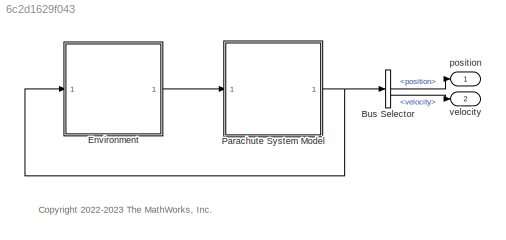
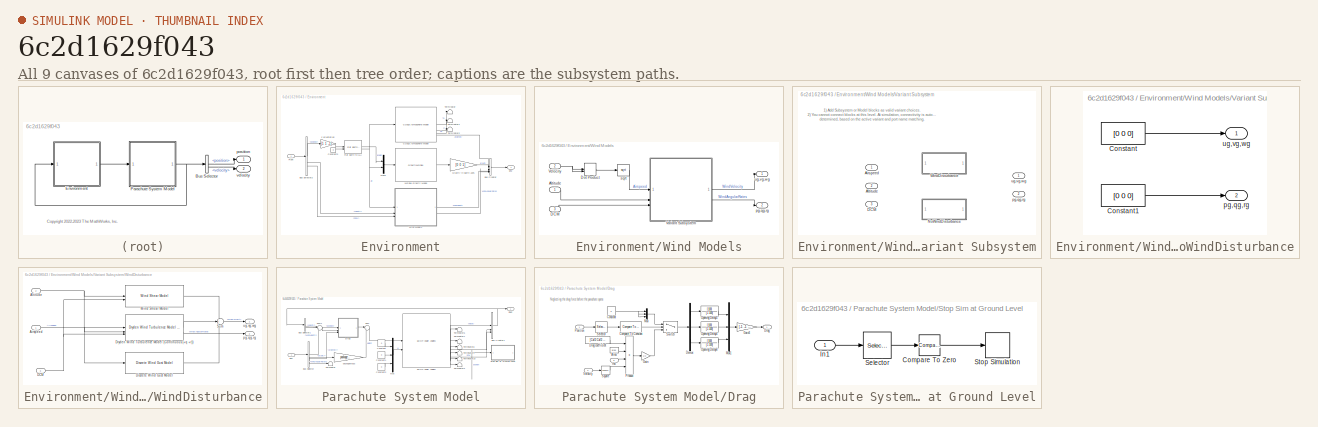
[diagram: thumbnail index - all 9 canvases of the model, root first then tree order]
MODEL slx_6c2d1629f043
KIND model
CONFIG AbsTol = auto
CONFIG EnableMultiTasking = off
CONFIG FixedStep = auto
CONFIG MaxStep = 0.1
CONFIG MinStep = auto
CONFIG PreLoadFcn = % initialize values allowing model to run without Live Script\nwindDisturbance = true;\nwindSeed = randi(100,1);\nheadingInitial = 45;\nlatInitial = 43.5319;\nlongInitial = 1.2438;\nXeInitial = 0;\nYeInitial = 0;\nZeInitial = 2000;\nUInitialMPS = 65.277777777777790;\nVInitialMPS = 0;\nWInitialMPS = 0;\nhOpening = 500;\npackageMass = 130;\narea = 115;\nmass = 165;\nvelocity = 6;\ng = 9.81;\nrho = 1.229;\nCd = 2*mass*...<+26ch>
CONFIG RelTol = 1e-3
CONFIG SampleTimeConstraint = Unconstrained
CONFIG SolverName = VariableStepAuto
CONFIG StartTime = 0.0
CONFIG StopTime = 500
BLOCK [BusSelector] Bus Selector
  OutputSignals = position,velocity
BLOCK [SubSystem] Environment
BLOCK [BusCreator] Environment/Bus Creator
  DisplayOption = bar
  InheritFromInputs = on
  Inputs = 4
BLOCK [BusSelector] Environment/Bus Selector2
  OutputSignals = position,velocity,DCM
BLOCK [Reference] Environment/COESA Atmosphere Model  REF=aerolibatmos2/COESA Atmosphere Model
  SourceBlock = aerolibatmos2/COESA Atmosphere Model
  SourceType = Atmosphere Model
BLOCK [Constant] Environment/Constant3
  Value = 0
BLOCK [Outport] Environment/Env
BLOCK [Reference] Environment/Flat Earth to LLA  REF=aerolibtransform2/Flat Earth to LLA
  SourceBlock = aerolibtransform2/Flat Earth to LLA
  SourceType = Flat Earth to LLA
BLOCK [Gain] Environment/Gravity in Earth Axes
  Gain = [0 0 1]
  OutDataTypeStr = Inherit: Same as input
  ParamDataTypeStr = Inherit: Same as input
  SaturateOnIntegerOverflow = on
BLOCK [Mux] Environment/Mux2
  DisplayOption = bar
  Inputs = 2
BLOCK [Inport] Environment/Plant
BLOCK [Terminator] Environment/Terminator
BLOCK [Terminator] Environment/Terminator1
BLOCK [Terminator] Environment/Terminator2
BLOCK [GravityWGS84] Environment/WGS84 Gravity Model  
  action = None
BLOCK [SubSystem] Environment/Wind Models
BLOCK [Inport] Environment/Wind Models/Altitude
BLOCK [Inport] Environment/Wind Models/DCM
  Port = 3
BLOCK [DotProduct] Environment/Wind Models/Dot Product
  InputSameDT = off
  OutDataTypeStr = Inherit: Inherit via internal rule
BLOCK [SubSystem] Environment/Wind Models/Variant Subsystem
  Variant = on
BLOCK [Inport] Environment/Wind Models/Variant Subsystem/Airspeed
BLOCK [Inport] Environment/Wind Models/Variant Subsystem/Altitude
  Port = 2
BLOCK [Inport] Environment/Wind Models/Variant Subsystem/DCM
  Port = 3
BLOCK [SubSystem] Environment/Wind Models/Variant Subsystem/NoWindDisturbance
  VariantControl = windDisturbance==false
BLOCK [Constant] Environment/Wind Models/Variant Subsystem/NoWindDisturbance/Constant
  Value = [0 0 0]
BLOCK [Constant] Environment/Wind Models/Variant Subsystem/NoWindDisturbance/Constant1
  Value = [0 0 0]
BLOCK [Outport] Environment/Wind Models/Variant Subsystem/NoWindDisturbance/pg,qg,rg
  Port = 2
  Unit = rad/second
  VectorParamsAs1DForOutWhenUnconnected = off
BLOCK [Outport] Environment/Wind Models/Variant Subsystem/NoWindDisturbance/ug,vg,wg
BLOCK [SubSystem] Environment/Wind Models/Variant Subsystem/WindDisturbance
  VariantControl = windDisturbance==true
BLOCK [Inport] Environment/Wind Models/Variant Subsystem/WindDisturbance/Airspeed
BLOCK [Inport] Environment/Wind Models/Variant Subsystem/WindDisturbance/Altitude
  Port = 2
BLOCK [Inport] Environment/Wind Models/Variant Subsystem/WindDisturbance/DCM
  Port = 3
BLOCK [Reference] Environment/Wind Models/Variant Subsystem/WindDisturbance/Discrete Wind Gust Model  REF=aerolibwind2/Discrete Wind Gust Model
  SourceBlock = aerolibwind2/Discrete Wind Gust Model
  SourceType = Discrete Wind Gust Model
BLOCK [Reference] Environment/Wind Models/Variant Subsystem/WindDisturbance/Dryden Wind Turbulence Model (Continuous (+q +r))  REF=aerolibwind2/Dryden Wind Turbulence Model 
(Continuous (+q -r))
  SourceBlock = aerolibwind2/Dryden Wind Turbulence Model \n(Continuous (+q -r))
  SourceType = Wind Turbulence Model
BLOCK [Sum] Environment/Wind Models/Variant Subsystem/WindDisturbance/Sum
  InputSameDT = on
  Inputs = +++
  OutDataTypeStr = Inherit: Same as first input
  SaturateOnIntegerOverflow = on
BLOCK [Reference] Environment/Wind Models/Variant Subsystem/WindDisturbance/Wind Shear Model  REF=aerolibwind2/Wind Shear Model
  SourceBlock = aerolibwind2/Wind Shear Model
  SourceType = Wind Shear Model
BLOCK [Outport] Environment/Wind Models/Variant Subsystem/WindDisturbance/pg,qg,rg
  Port = 2
  Unit = rad/second
  VectorParamsAs1DForOutWhenUnconnected = off
BLOCK [Outport] Environment/Wind Models/Variant Subsystem/WindDisturbance/ug,vg,wg
BLOCK [Outport] Environment/Wind Models/Variant Subsystem/pg,qg,rg
  Port = 2
BLOCK [Outport] Environment/Wind Models/Variant Subsystem/ug,vg,wg
BLOCK [Inport] Environment/Wind Models/Velocity
  Port = 2
BLOCK [Outport] Environment/Wind Models/pg,qg,rg
  Port = 2
  Unit = rad/second
  VectorParamsAs1DForOutWhenUnconnected = off
BLOCK [Sqrt] Environment/Wind Models/sqrt
BLOCK [Outport] Environment/Wind Models/ug,vg,wg
  Unit = m/s
  VectorParamsAs1DForOutWhenUnconnected = off
BLOCK [Gain] Environment/z orientation
  Gain = [1 1 -1]
  NameLocation = top
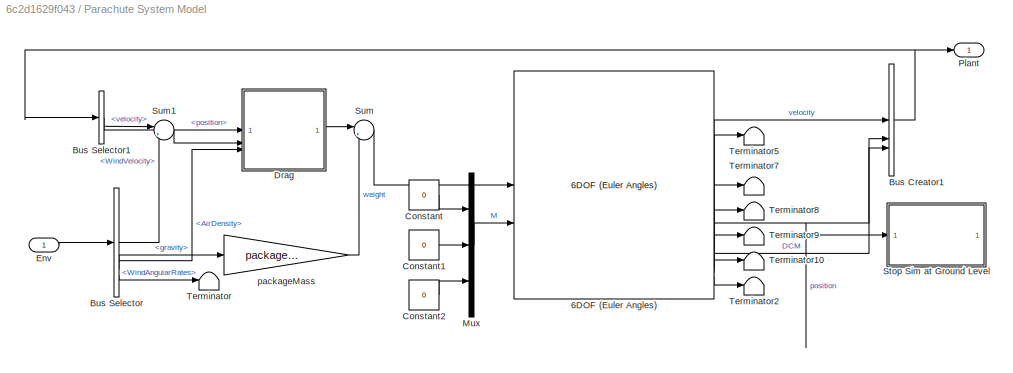
BLOCK [SubSystem] Parachute System Model
BLOCK [Reference] Parachute System Model/6DOF (Euler Angles)  REF=shared6dof/6DOF (Euler Angles)
  SourceBlock = shared6dof/6DOF (Euler Angles)
  SourceType = 6DOF EoM (Body Axis)
BLOCK [BusCreator] Parachute System Model/Bus Creator1
  DisplayOption = bar
  InheritFromInputs = on
  Inputs = 3
BLOCK [BusSelector] Parachute System Model/Bus Selector
  OutputSignals = WindVelocity,AirDensity,gravity,WindAngularRates
BLOCK [BusSelector] Parachute System Model/Bus Selector1
  OutputSignals = position,velocity
BLOCK [Constant] Parachute System Model/Constant
  Value = 0
BLOCK [Constant] Parachute System Model/Constant1
  Value = 0
BLOCK [Constant] Parachute System Model/Constant2
  Value = 0
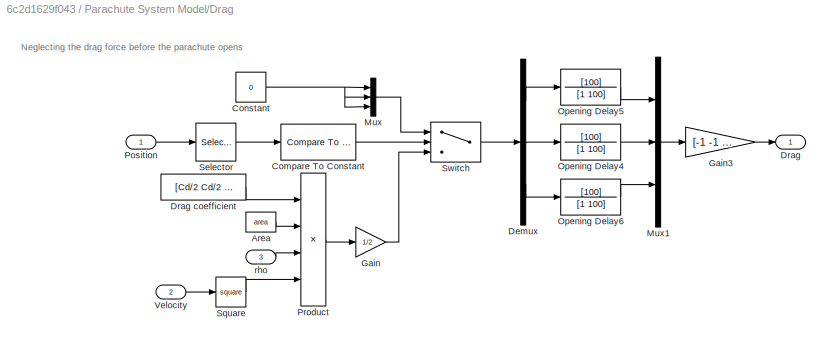
BLOCK [SubSystem] Parachute System Model/Drag
BLOCK [Constant] Parachute System Model/Drag/Area
  Value = area
BLOCK [Reference] Parachute System Model/Drag/Compare To Constant  REF=simulink/Logic and Bit
Operations/Compare
To Constant
  SourceBlock = simulink/Logic and Bit\nOperations/Compare\nTo Constant
  SourceType = Compare To Constant
BLOCK [Constant] Parachute System Model/Drag/Constant
  Value = 0
BLOCK [Demux] Parachute System Model/Drag/Demux
  Outputs = 3
BLOCK [Outport] Parachute System Model/Drag/Drag
BLOCK [Constant] Parachute System Model/Drag/Drag coefficient
  Value = [Cd/2 Cd/2 Cd]
BLOCK [Gain] Parachute System Model/Drag/Gain
  Gain = 1/2
BLOCK [Gain] Parachute System Model/Drag/Gain3
  Gain = [-1 -1 1]
BLOCK [Mux] Parachute System Model/Drag/Mux
  DisplayOption = bar
  Inputs = 3
BLOCK [Mux] Parachute System Model/Drag/Mux1
  DisplayOption = bar
  Inputs = 3
BLOCK [TransferFcn] Parachute System Model/Drag/Opening Delay4
  Denominator = [1 100]
  Numerator = [100]
BLOCK [TransferFcn] Parachute System Model/Drag/Opening Delay5
  Denominator = [1 100]
  Numerator = [100]
BLOCK [TransferFcn] Parachute System Model/Drag/Opening Delay6
  Denominator = [1 100]
  Numerator = [100]
BLOCK [Inport] Parachute System Model/Drag/Position
BLOCK [Product] Parachute System Model/Drag/Product
  Inputs = 4
BLOCK [Selector] Parachute System Model/Drag/Selector
  IndexOptions = Index vector (dialog)
  Indices = [3]
  InputPortWidth = 3
  OutputSizes = 1
BLOCK [Math] Parachute System Model/Drag/Square
  Operator = square
BLOCK [Switch] Parachute System Model/Drag/Switch
  Criteria = u2 > Threshold
  InputSameDT = off
  SaturateOnIntegerOverflow = off
BLOCK [Inport] Parachute System Model/Drag/Velocity
  Port = 2
BLOCK [Inport] Parachute System Model/Drag/rho
  Port = 3
BLOCK [Inport] Parachute System Model/Env
BLOCK [Mux] Parachute System Model/Mux
  DisplayOption = bar
  Inputs = 3
BLOCK [Outport] Parachute System Model/Plant
BLOCK [SubSystem] Parachute System Model/Stop Sim at Ground Level
BLOCK [Reference] Parachute System Model/Stop Sim at Ground Level/Compare To Zero  REF=simulink/Logic and Bit
Operations/Compare
To Zero
  SourceBlock = simulink/Logic and Bit\nOperations/Compare\nTo Zero
  SourceType = Compare To Zero
BLOCK [Inport] Parachute System Model/Stop Sim at Ground Level/In1
BLOCK [Selector] Parachute System Model/Stop Sim at Ground Level/Selector
  IndexOptions = Index vector (dialog)
  Indices = [3]
  InputPortWidth = 3
  OutputSizes = 1
BLOCK [Stop] Parachute System Model/Stop Sim at Ground Level/Stop Simulation
BLOCK [Sum] Parachute System Model/Sum
  Inputs = |+-
BLOCK [Sum] Parachute System Model/Sum1
  Inputs = |++
BLOCK [Terminator] Parachute System Model/Terminator
BLOCK [Terminator] Parachute System Model/Terminator10
BLOCK [Terminator] Parachute System Model/Terminator2
BLOCK [Terminator] Parachute System Model/Terminator5
BLOCK [Terminator] Parachute System Model/Terminator7
BLOCK [Terminator] Parachute System Model/Terminator8
BLOCK [Terminator] Parachute System Model/Terminator9
BLOCK [Gain] Parachute System Model/packageMass
  Gain = packageMass
BLOCK [Outport] position
  NameLocation = top
BLOCK [Outport] velocity
  Port = 2
ANNOTATION (root): <copyright redacted>
ANNOTATION Environment/Wind Models/Variant Subsystem: 1) Add Subsystem or Model blocks as valid variant choices. 2) You cannot connect blocks at this level. At simulation, connectivity is automatically determined, based on the active variant and port name matching.
ANNOTATION Parachute System Model/Drag: Neglecting the drag force before the parachute opens
LINE Bus Selector:1 -> position:1
LINE Bus Selector:2 -> velocity:1
LINE Environment/Bus Creator:1 -> Environment/Env:1
LINE Environment/Bus Selector2:1 -> Environment/z orientation:1
LINE Environment/Bus Selector2:2 -> Environment/Wind Models:2
LINE Environment/Bus Selector2:3 -> Environment/Wind Models:3
LINE Environment/COESA Atmosphere Model:1 -> Environment/Terminator:1
LINE Environment/COESA Atmosphere Model:2 -> Environment/Terminator1:1
LINE Environment/COESA Atmosphere Model:3 -> Environment/Terminator2:1
LINE Environment/COESA Atmosphere Model:4 -> Environment/Bus Creator:1
LINE Environment/Constant3:1 -> Environment/Flat Earth to LLA:2
LINE Environment/Flat Earth to LLA:1 -> Environment/Mux2:1
NET Environment/Flat Earth to LLA:2 -> Environment/COESA Atmosphere Model:1, Environment/Mux2:2, Environment/Wind Models:1
LINE Environment/Gravity in Earth Axes:1 -> Environment/Bus Creator:2
LINE Environment/Mux2:1 -> Environment/WGS84 Gravity Model  :1
LINE Environment/Plant:1 -> Environment/Bus Selector2:1
LINE Environment/WGS84 Gravity Model  :1 -> Environment/Gravity in Earth Axes:1
LINE Environment/Wind Models/Altitude:1 -> Environment/Wind Models/Variant Subsystem:2
LINE Environment/Wind Models/DCM:1 -> Environment/Wind Models/Variant Subsystem:3
LINE Environment/Wind Models/Dot Product:1 -> Environment/Wind Models/sqrt:1
LINE Environment/Wind Models/Variant Subsystem/NoWindDisturbance/Constant1:1 -> Environment/Wind Models/Variant Subsystem/NoWindDisturbance/pg,qg,rg:1
LINE Environment/Wind Models/Variant Subsystem/NoWindDisturbance/Constant:1 -> Environment/Wind Models/Variant Subsystem/NoWindDisturbance/ug,vg,wg:1
NET Environment/Wind Models/Variant Subsystem/WindDisturbance/Airspeed:1 -> Environment/Wind Models/Variant Subsystem/WindDisturbance/Discrete Wind Gust Model:1, Environment/Wind Models/Variant Subsystem/WindDisturbance/Dryden Wind Turbulence Model (Continuous (+q +r)):2
NET Environment/Wind Models/Variant Subsystem/WindDisturbance/Altitude:1 -> Environment/Wind Models/Variant Subsystem/WindDisturbance/Dryden Wind Turbulence Model (Continuous (+q +r)):1, Environment/Wind Models/Variant Subsystem/WindDisturbance/Wind Shear Model:1
NET Environment/Wind Models/Variant Subsystem/WindDisturbance/DCM:1 -> Environment/Wind Models/Variant Subsystem/WindDisturbance/Dryden Wind Turbulence Model (Continuous (+q +r)):3, Environment/Wind Models/Variant Subsystem/WindDisturbance/Wind Shear Model:2
LINE Environment/Wind Models/Variant Subsystem/WindDisturbance/Discrete Wind Gust Model:1 -> Environment/Wind Models/Variant Subsystem/WindDisturbance/Sum:3
LINE Environment/Wind Models/Variant Subsystem/WindDisturbance/Dryden Wind Turbulence Model (Continuous (+q +r)):1 -> Environment/Wind Models/Variant Subsystem/WindDisturbance/Sum:2
LINE Environment/Wind Models/Variant Subsystem/WindDisturbance/Dryden Wind Turbulence Model (Continuous (+q +r)):2 -> Environment/Wind Models/Variant Subsystem/WindDisturbance/pg,qg,rg:1
LINE Environment/Wind Models/Variant Subsystem/WindDisturbance/Sum:1 -> Environment/Wind Models/Variant Subsystem/WindDisturbance/ug,vg,wg:1
LINE Environment/Wind Models/Variant Subsystem/WindDisturbance/Wind Shear Model:1 -> Environment/Wind Models/Variant Subsystem/WindDisturbance/Sum:1
LINE Environment/Wind Models/Variant Subsystem:1 -> Environment/Wind Models/ug,vg,wg:1
LINE Environment/Wind Models/Variant Subsystem:2 -> Environment/Wind Models/pg,qg,rg:1
NET Environment/Wind Models/Velocity:1 -> Environment/Wind Models/Dot Product:1, Environment/Wind Models/Dot Product:2
LINE Environment/Wind Models/sqrt:1 -> Environment/Wind Models/Variant Subsystem:1
LINE Environment/Wind Models:1 -> Environment/Bus Creator:3
LINE Environment/Wind Models:2 -> Environment/Bus Creator:4
LINE Environment/z orientation:1 -> Environment/Flat Earth to LLA:1
LINE Environment:1 -> Parachute System Model:1
LINE Parachute System Model/6DOF (Euler Angles):1 -> Parachute System Model/Bus Creator1:1
NET Parachute System Model/6DOF (Euler Angles):2 -> Parachute System Model/Bus Creator1:2, Parachute System Model/Stop Sim at Ground Level:1
LINE Parachute System Model/6DOF (Euler Angles):3 -> Parachute System Model/Terminator5:1
LINE Parachute System Model/6DOF (Euler Angles):4 -> Parachute System Model/Bus Creator1:3
LINE Parachute System Model/6DOF (Euler Angles):5 -> Parachute System Model/Terminator7:1
LINE Parachute System Model/6DOF (Euler Angles):6 -> Parachute System Model/Terminator8:1
LINE Parachute System Model/6DOF (Euler Angles):7 -> Parachute System Model/Terminator9:1
LINE Parachute System Model/6DOF (Euler Angles):8 -> Parachute System Model/Terminator10:1
LINE Parachute System Model/6DOF (Euler Angles):9 -> Parachute System Model/Terminator2:1
NET Parachute System Model/Bus Creator1:1 -> Parachute System Model/Bus Selector1:1, Parachute System Model/Plant:1
LINE Parachute System Model/Bus Selector1:1 -> Parachute System Model/Drag:1
LINE Parachute System Model/Bus Selector1:2 -> Parachute System Model/Sum1:1
LINE Parachute System Model/Bus Selector:1 -> Parachute System Model/Sum1:2
LINE Parachute System Model/Bus Selector:2 -> Parachute System Model/Drag:3
LINE Parachute System Model/Bus Selector:3 -> Parachute System Model/packageMass:1
LINE Parachute System Model/Bus Selector:4 -> Parachute System Model/Terminator:1
LINE Parachute System Model/Constant1:1 -> Parachute System Model/Mux:2
LINE Parachute System Model/Constant2:1 -> Parachute System Model/Mux:3
LINE Parachute System Model/Constant:1 -> Parachute System Model/Mux:1
LINE Parachute System Model/Drag/Area:1 -> Parachute System Model/Drag/Product:2
LINE Parachute System Model/Drag/Compare To Constant:1 -> Parachute System Model/Drag/Switch:2
NET Parachute System Model/Drag/Constant:1 -> Parachute System Model/Drag/Mux:1, Parachute System Model/Drag/Mux:2, Parachute System Model/Drag/Mux:3
LINE Parachute System Model/Drag/Demux:1 -> Parachute System Model/Drag/Opening Delay5:1
LINE Parachute System Model/Drag/Demux:2 -> Parachute System Model/Drag/Opening Delay4:1
LINE Parachute System Model/Drag/Demux:3 -> Parachute System Model/Drag/Opening Delay6:1
LINE Parachute System Model/Drag/Drag coefficient:1 -> Parachute System Model/Drag/Product:1
LINE Parachute System Model/Drag/Gain3:1 -> Parachute System Model/Drag/Drag:1
LINE Parachute System Model/Drag/Gain:1 -> Parachute System Model/Drag/Switch:3
LINE Parachute System Model/Drag/Mux1:1 -> Parachute System Model/Drag/Gain3:1
LINE Parachute System Model/Drag/Mux:1 -> Parachute System Model/Drag/Switch:1
LINE Parachute System Model/Drag/Opening Delay4:1 -> Parachute System Model/Drag/Mux1:2
LINE Parachute System Model/Drag/Opening Delay5:1 -> Parachute System Model/Drag/Mux1:1
LINE Parachute System Model/Drag/Opening Delay6:1 -> Parachute System Model/Drag/Mux1:3
LINE Parachute System Model/Drag/Position:1 -> Parachute System Model/Drag/Selector:1
LINE Parachute System Model/Drag/Product:1 -> Parachute System Model/Drag/Gain:1
LINE Parachute System Model/Drag/Selector:1 -> Parachute System Model/Drag/Compare To Constant:1
LINE Parachute System Model/Drag/Square:1 -> Parachute System Model/Drag/Product:4
LINE Parachute System Model/Drag/Switch:1 -> Parachute System Model/Drag/Demux:1
LINE Parachute System Model/Drag/Velocity:1 -> Parachute System Model/Drag/Square:1
LINE Parachute System Model/Drag/rho:1 -> Parachute System Model/Drag/Product:3
LINE Parachute System Model/Drag:1 -> Parachute System Model/Sum:1
LINE Parachute System Model/Env:1 -> Parachute System Model/Bus Selector:1
LINE Parachute System Model/Mux:1 -> Parachute System Model/6DOF (Euler Angles):2
LINE Parachute System Model/Stop Sim at Ground Level/Compare To Zero:1 -> Parachute System Model/Stop Sim at Ground Level/Stop Simulation:1
LINE Parachute System Model/Stop Sim at Ground Level/In1:1 -> Parachute System Model/Stop Sim at Ground Level/Selector:1
LINE Parachute System Model/Stop Sim at Ground Level/Selector:1 -> Parachute System Model/Stop Sim at Ground Level/Compare To Zero:1
LINE Parachute System Model/Sum1:1 -> Parachute System Model/Drag:2
LINE Parachute System Model/Sum:1 -> Parachute System Model/6DOF (Euler Angles):1
LINE Parachute System Model/packageMass:1 -> Parachute System Model/Sum:2
NET Parachute System Model:1 -> Bus Selector:1, Environment:1
note: NET lines group one-source signal fan-out (src -> all destinations, sorted); 1:1 wires keep LINE
